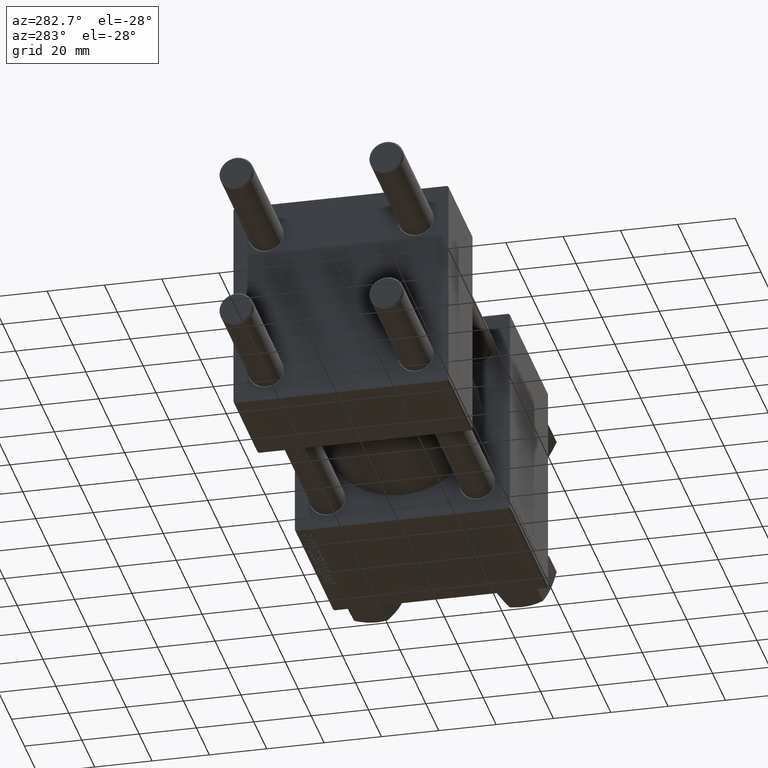
[diagram: clean part render]
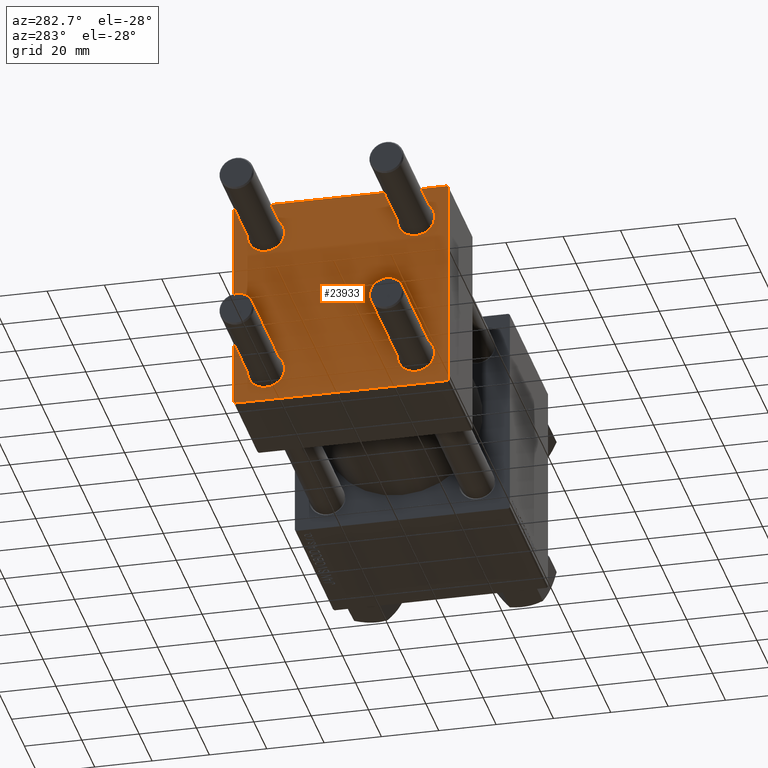
[diagram: same view with one face highlighted and labeled with its STEP entity id]
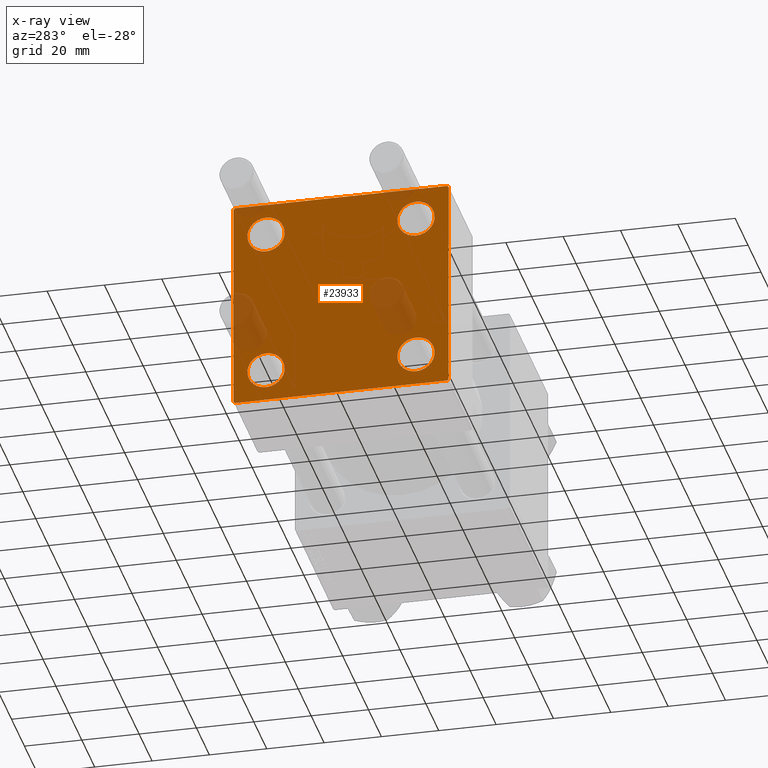
[diagram: x-ray of the same camera — body ghosted, the highlighted face saturated]
A machine part, auxiliary view. The second image highlights one B-rep face of the part: STEP entity #23933.
The next image is the same camera in x-ray: the body ghosted, the highlighted face saturated — about 10% of this face is hidden behind the body in this view.
In plain terms, the highlighted planar face has unit normal (-1, 0, 0).
Its self-contained STEP definition (entity closure, byte-faithful):
#51 = CARTESIAN_POINT ( 'NONE',  ( 0.000000000000000000, 37.49999999999999289, 37.50000000000000000 ) ) ;
#627 = VECTOR ( 'NONE', #36630, 1000.000000000000000 ) ;
#732 = ORIENTED_EDGE ( 'NONE', *, *, #5123, .T. ) ;
#894 = VERTEX_POINT ( 'NONE', #49805 ) ;
#1413 = AXIS2_PLACEMENT_3D ( 'NONE', #41425, #13198, #5624 ) ;
#1449 = VECTOR ( 'NONE', #10763, 1000.000000000000000 ) ;
#1534 = VERTEX_POINT ( 'NONE', #28439 ) ;
#2070 = DIRECTION ( 'NONE',  ( 1.000000000000000000, -0.000000000000000000, 0.000000000000000000 ) ) ;
#2083 = EDGE_CURVE ( 'NONE', #17969, #9155, #30806, .T. ) ;
#2991 = CARTESIAN_POINT ( 'NONE',  ( 0.000000000000000000, 26.14999999999999858, -32.65000000000001990 ) ) ;
#3847 = EDGE_CURVE ( 'NONE', #33095, #17969, #44226, .T. ) ;
#3995 = CARTESIAN_POINT ( 'NONE',  ( 0.000000000000000000, -37.50000000000000711, 37.49999999999999289 ) ) ;
#4770 = EDGE_CURVE ( 'NONE', #49307, #24477, #38527, .T. ) ;
#5123 = EDGE_CURVE ( 'NONE', #19574, #48206, #10280, .T. ) ;
#5370 = ORIENTED_EDGE ( 'NONE', *, *, #42145, .T. ) ;
#5624 = DIRECTION ( 'NONE',  ( 0.000000000000000000, 0.000000000000000000, 1.000000000000000000 ) ) ;
#5963 = EDGE_CURVE ( 'NONE', #28362, #894, #23259, .T. ) ;
#6480 = CARTESIAN_POINT ( 'NONE',  ( 0.000000000000000000, 37.49999999999999289, -37.50000000000000000 ) ) ;
#6601 = PLANE ( 'NONE',  #43799 ) ;
#6660 = EDGE_CURVE ( 'NONE', #21234, #1534, #31227, .T. ) ;
#7093 = ORIENTED_EDGE ( 'NONE', *, *, #5963, .T. ) ;
#7756 = DIRECTION ( 'NONE',  ( 1.000000000000000000, -0.000000000000000000, 0.000000000000000000 ) ) ;
#7942 = AXIS2_PLACEMENT_3D ( 'NONE', #42958, #47232, #43958 ) ;
#8192 = CARTESIAN_POINT ( 'NONE',  ( 0.000000000000000000, 26.14999999999999858, 19.64999999999998437 ) ) ;
#8881 = VECTOR ( 'NONE', #37467, 1000.000000000000114 ) ;
#9155 = VERTEX_POINT ( 'NONE', #25425 ) ;
#9224 = EDGE_CURVE ( 'NONE', #9155, #19574, #45389, .T. ) ;
#9459 = AXIS2_PLACEMENT_3D ( 'NONE', #17279, #9704, #13978 ) ;
#9704 = DIRECTION ( 'NONE',  ( 1.000000000000000000, -0.000000000000000000, 0.000000000000000000 ) ) ;
#10280 = LINE ( 'NONE', #25941, #32927 ) ;
#10380 = DIRECTION ( 'NONE',  ( 1.000000000000000000, -0.000000000000000000, 0.000000000000000000 ) ) ;
#10449 = EDGE_LOOP ( 'NONE', ( #20263, #7093 ) ) ;
#10622 = DIRECTION ( 'NONE',  ( 0.000000000000000000, 0.000000000000000000, 1.000000000000000000 ) ) ;
#10763 = DIRECTION ( 'NONE',  ( 0.000000000000000000, -1.000000000000000000, -9.251858538542972814E-17 ) ) ;
#11118 = VECTOR ( 'NONE', #49337, 1000.000000000000114 ) ;
#11382 = FACE_BOUND ( 'NONE', #10449, .T. ) ;
#13198 = DIRECTION ( 'NONE',  ( 1.000000000000000000, -0.000000000000000000, 0.000000000000000000 ) ) ;
#13304 = CARTESIAN_POINT ( 'NONE',  ( 0.000000000000000000, -26.14999999999999147, -32.65000000000002700 ) ) ;
#13545 = EDGE_CURVE ( 'NONE', #42425, #33095, #14476, .T. ) ;
#13926 = CARTESIAN_POINT ( 'NONE',  ( 0.000000000000000000, -37.00000000000002132, -37.50000000000000711 ) ) ;
#13978 = DIRECTION ( 'NONE',  ( 0.000000000000000000, 0.000000000000000000, 1.000000000000000000 ) ) ;
#14177 = ORIENTED_EDGE ( 'NONE', *, *, #28334, .T. ) ;
#14476 = LINE ( 'NONE', #22053, #8881 ) ;
#14602 = CIRCLE ( 'NONE', #21054, 6.500000000000023093 ) ;
#15164 = FACE_BOUND ( 'NONE', #28776, .T. ) ;
#15355 = LINE ( 'NONE', #3995, #49933 ) ;
#15467 = DIRECTION ( 'NONE',  ( 0.000000000000000000, -1.000000000000000000, -9.251858538542971581E-17 ) ) ;
#16131 = EDGE_CURVE ( 'NONE', #894, #28362, #14602, .T. ) ;
#17279 = CARTESIAN_POINT ( 'NONE',  ( 0.000000000000000000, -26.14999999999999147, 26.15000000000000924 ) ) ;
#17696 = CARTESIAN_POINT ( 'NONE',  ( 0.000000000000000000, -26.14999999999999147, 26.15000000000000924 ) ) ;
#17861 = VERTEX_POINT ( 'NONE', #24835 ) ;
#17969 = VERTEX_POINT ( 'NONE', #26834 ) ;
#18517 = EDGE_LOOP ( 'NONE', ( #34043, #36750, #49112, #732, #37484, #5370, #18984, #30618 ) ) ;
#18984 = ORIENTED_EDGE ( 'NONE', *, *, #46247, .F. ) ;
#19251 = LINE ( 'NONE', #51, #26589 ) ;
#19574 = VERTEX_POINT ( 'NONE', #13926 ) ;
#20263 = ORIENTED_EDGE ( 'NONE', *, *, #16131, .T. ) ;
#20585 = CARTESIAN_POINT ( 'NONE',  ( 0.000000000000000000, 37.49999999999999289, 37.00000000000000000 ) ) ;
#21054 = AXIS2_PLACEMENT_3D ( 'NONE', #40727, #2070, #45519 ) ;
#21234 = VERTEX_POINT ( 'NONE', #38061 ) ;
#21567 = VERTEX_POINT ( 'NONE', #22829 ) ;
#21605 = CIRCLE ( 'NONE', #49857, 6.500000000000023093 ) ;
#21690 = VERTEX_POINT ( 'NONE', #46568 ) ;
#21751 = AXIS2_PLACEMENT_3D ( 'NONE', #29173, #25140, #40794 ) ;
#21998 = CARTESIAN_POINT ( 'NONE',  ( 0.000000000000000000, 0.000000000000000000, 0.000000000000000000 ) ) ;
#22053 = CARTESIAN_POINT ( 'NONE',  ( 0.000000000000000000, 37.24999999999999289, 37.24999999999999289 ) ) ;
#22829 = CARTESIAN_POINT ( 'NONE',  ( 0.000000000000000000, 26.14999999999999858, -19.64999999999998792 ) ) ;
#23259 = CIRCLE ( 'NONE', #7942, 6.500000000000023093 ) ;
#23596 = DIRECTION ( 'NONE',  ( 0.000000000000000000, 0.000000000000000000, 1.000000000000000000 ) ) ;
#23933 = ADVANCED_FACE ( 'NONE', ( #15164, #41212, #30574, #11382, #42217 ), #6601, .T. ) ;
#24477 = VERTEX_POINT ( 'NONE', #13304 ) ;
#24835 = CARTESIAN_POINT ( 'NONE',  ( 0.000000000000000000, -37.00000000000000711, 37.49999999999999289 ) ) ;
#25140 = DIRECTION ( 'NONE',  ( 1.000000000000000000, -0.000000000000000000, 0.000000000000000000 ) ) ;
#25425 = CARTESIAN_POINT ( 'NONE',  ( 0.000000000000000000, 36.99999999999997868, -37.50000000000000000 ) ) ;
#25941 = CARTESIAN_POINT ( 'NONE',  ( 0.000000000000000000, -37.24999999999975842, -37.25000000000027001 ) ) ;
#26589 = VECTOR ( 'NONE', #15467, 1000.000000000000000 ) ;
#26834 = CARTESIAN_POINT ( 'NONE',  ( 0.000000000000000000, 37.49999999999999289, -36.99999999999998579 ) ) ;
#27017 = CARTESIAN_POINT ( 'NONE',  ( 0.000000000000000000, 37.24999999999998579, -37.24999999999998579 ) ) ;
#27194 = DIRECTION ( 'NONE',  ( 0.000000000000000000, 0.000000000000000000, 1.000000000000000000 ) ) ;
#28334 = EDGE_CURVE ( 'NONE', #24477, #49307, #31009, .T. ) ;
#28362 = VERTEX_POINT ( 'NONE', #8192 ) ;
#28439 = CARTESIAN_POINT ( 'NONE',  ( 0.000000000000000000, -26.14999999999999147, 19.64999999999999147 ) ) ;
#28776 = EDGE_LOOP ( 'NONE', ( #34372, #43350 ) ) ;
#29173 = CARTESIAN_POINT ( 'NONE',  ( 0.000000000000000000, 26.14999999999999858, -26.15000000000000213 ) ) ;
#29880 = CARTESIAN_POINT ( 'NONE',  ( 0.000000000000000000, -26.14999999999999147, -19.64999999999999503 ) ) ;
#30129 = LINE ( 'NONE', #47664, #11118 ) ;
#30574 = FACE_BOUND ( 'NONE', #44477, .T. ) ;
#30618 = ORIENTED_EDGE ( 'NONE', *, *, #13545, .T. ) ;
#30658 = ORIENTED_EDGE ( 'NONE', *, *, #4770, .T. ) ;
#30806 = LINE ( 'NONE', #27017, #34411 ) ;
#31009 = CIRCLE ( 'NONE', #37461, 6.500000000000015987 ) ;
#31227 = CIRCLE ( 'NONE', #9459, 6.500000000000023093 ) ;
#32927 = VECTOR ( 'NONE', #37318, 1000.000000000000000 ) ;
#33095 = VERTEX_POINT ( 'NONE', #20585 ) ;
#34043 = ORIENTED_EDGE ( 'NONE', *, *, #3847, .T. ) ;
#34372 = ORIENTED_EDGE ( 'NONE', *, *, #6660, .T. ) ;
#34411 = VECTOR ( 'NONE', #46231, 1000.000000000000114 ) ;
#34590 = ORIENTED_EDGE ( 'NONE', *, *, #47194, .T. ) ;
#35363 = DIRECTION ( 'NONE',  ( -1.000000000000000000, 0.000000000000000000, -0.000000000000000000 ) ) ;
#35612 = DIRECTION ( 'NONE',  ( -0.000000000000000000, 0.000000000000000000, 1.000000000000000000 ) ) ;
#36315 = EDGE_LOOP ( 'NONE', ( #30658, #14177 ) ) ;
#36630 = DIRECTION ( 'NONE',  ( 0.000000000000000000, 0.000000000000000000, -1.000000000000000000 ) ) ;
#36750 = ORIENTED_EDGE ( 'NONE', *, *, #2083, .T. ) ;
#36911 = CARTESIAN_POINT ( 'NONE',  ( 0.000000000000000000, 36.99999999999999289, 37.50000000000000000 ) ) ;
#37318 = DIRECTION ( 'NONE',  ( 0.000000000000000000, -0.7071067811865524577, 0.7071067811865426878 ) ) ;
#37461 = AXIS2_PLACEMENT_3D ( 'NONE', #43062, #42811, #23596 ) ;
#37467 = DIRECTION ( 'NONE',  ( 0.000000000000000000, 0.7071067811865474617, -0.7071067811865474617 ) ) ;
#37484 = ORIENTED_EDGE ( 'NONE', *, *, #40487, .F. ) ;
#38061 = CARTESIAN_POINT ( 'NONE',  ( 0.000000000000000000, -26.14999999999999147, 32.65000000000003411 ) ) ;
#38113 = DIRECTION ( 'NONE',  ( 0.000000000000000000, 9.251858538542971581E-17, -1.000000000000000000 ) ) ;
#38527 = CIRCLE ( 'NONE', #1413, 6.500000000000015987 ) ;
#38868 = EDGE_CURVE ( 'NONE', #1534, #21234, #21605, .T. ) ;
#39066 = CARTESIAN_POINT ( 'NONE',  ( 0.000000000000000000, 26.14999999999999858, -26.15000000000000213 ) ) ;
#39467 = AXIS2_PLACEMENT_3D ( 'NONE', #39066, #7756, #27194 ) ;
#40487 = EDGE_CURVE ( 'NONE', #21690, #48206, #15355, .T. ) ;
#40727 = CARTESIAN_POINT ( 'NONE',  ( 0.000000000000000000, 26.14999999999999858, 26.15000000000000213 ) ) ;
#40794 = DIRECTION ( 'NONE',  ( 0.000000000000000000, 0.000000000000000000, 1.000000000000000000 ) ) ;
#41212 = FACE_BOUND ( 'NONE', #36315, .T. ) ;
#41425 = CARTESIAN_POINT ( 'NONE',  ( 0.000000000000000000, -26.14999999999999147, -26.15000000000000924 ) ) ;
#42145 = EDGE_CURVE ( 'NONE', #21690, #17861, #30129, .T. ) ;
#42217 = FACE_OUTER_BOUND ( 'NONE', #18517, .T. ) ;
#42425 = VERTEX_POINT ( 'NONE', #36911 ) ;
#42811 = DIRECTION ( 'NONE',  ( 1.000000000000000000, -0.000000000000000000, 0.000000000000000000 ) ) ;
#42958 = CARTESIAN_POINT ( 'NONE',  ( 0.000000000000000000, 26.14999999999999858, 26.15000000000000213 ) ) ;
#43062 = CARTESIAN_POINT ( 'NONE',  ( 0.000000000000000000, -26.14999999999999147, -26.15000000000000924 ) ) ;
#43350 = ORIENTED_EDGE ( 'NONE', *, *, #38868, .T. ) ;
#43799 = AXIS2_PLACEMENT_3D ( 'NONE', #21998, #35363, #35612 ) ;
#43900 = VERTEX_POINT ( 'NONE', #2991 ) ;
#43958 = DIRECTION ( 'NONE',  ( 0.000000000000000000, 0.000000000000000000, 1.000000000000000000 ) ) ;
#44226 = LINE ( 'NONE', #44474, #627 ) ;
#44474 = CARTESIAN_POINT ( 'NONE',  ( 0.000000000000000000, 37.49999999999999289, 37.50000000000000000 ) ) ;
#44477 = EDGE_LOOP ( 'NONE', ( #49329, #34590 ) ) ;
#44666 = EDGE_CURVE ( 'NONE', #21567, #43900, #49929, .T. ) ;
#45389 = LINE ( 'NONE', #6480, #1449 ) ;
#45519 = DIRECTION ( 'NONE',  ( 0.000000000000000000, 0.000000000000000000, 1.000000000000000000 ) ) ;
#46231 = DIRECTION ( 'NONE',  ( -0.000000000000000000, -0.7071067811865474617, -0.7071067811865474617 ) ) ;
#46247 = EDGE_CURVE ( 'NONE', #42425, #17861, #19251, .T. ) ;
#46568 = CARTESIAN_POINT ( 'NONE',  ( 0.000000000000000000, -37.50000000000000711, 36.99999999999999289 ) ) ;
#47194 = EDGE_CURVE ( 'NONE', #43900, #21567, #48413, .T. ) ;
#47232 = DIRECTION ( 'NONE',  ( 1.000000000000000000, -0.000000000000000000, 0.000000000000000000 ) ) ;
#47664 = CARTESIAN_POINT ( 'NONE',  ( -0.000000000000000000, -37.25000000000000000, 37.25000000000000000 ) ) ;
#48206 = VERTEX_POINT ( 'NONE', #48581 ) ;
#48413 = CIRCLE ( 'NONE', #21751, 6.500000000000015987 ) ;
#48581 = CARTESIAN_POINT ( 'NONE',  ( 0.000000000000000000, -37.50000000000000000, -37.00000000000003553 ) ) ;
#49112 = ORIENTED_EDGE ( 'NONE', *, *, #9224, .T. ) ;
#49307 = VERTEX_POINT ( 'NONE', #29880 ) ;
#49329 = ORIENTED_EDGE ( 'NONE', *, *, #44666, .T. ) ;
#49337 = DIRECTION ( 'NONE',  ( -0.000000000000000000, 0.7071067811865474617, 0.7071067811865474617 ) ) ;
#49805 = CARTESIAN_POINT ( 'NONE',  ( 0.000000000000000000, 26.14999999999999858, 32.65000000000002700 ) ) ;
#49857 = AXIS2_PLACEMENT_3D ( 'NONE', #17696, #10380, #10622 ) ;
#49929 = CIRCLE ( 'NONE', #39467, 6.500000000000015987 ) ;
#49933 = VECTOR ( 'NONE', #38113, 1000.000000000000000 ) ;